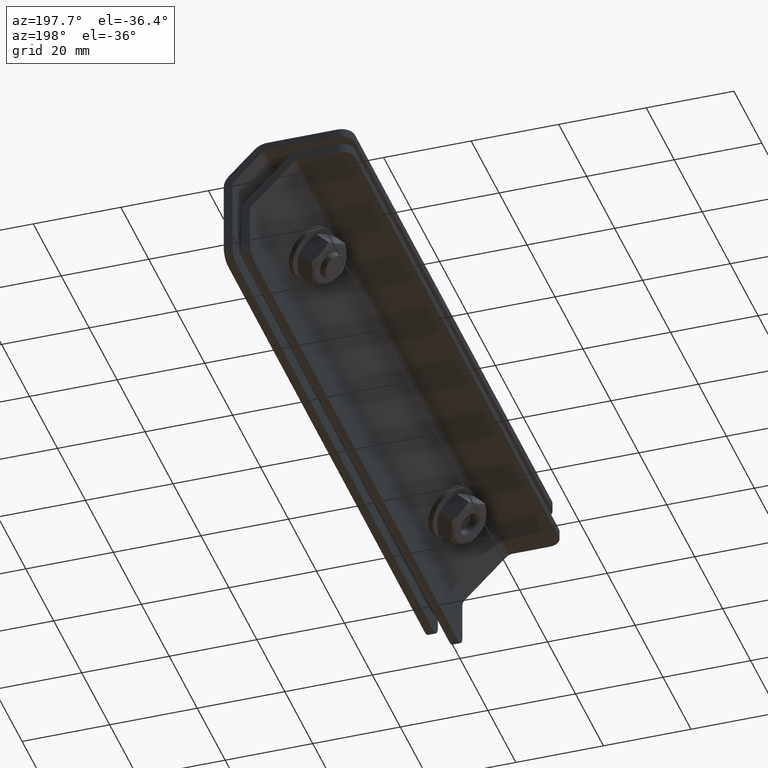
[diagram: clean part render]
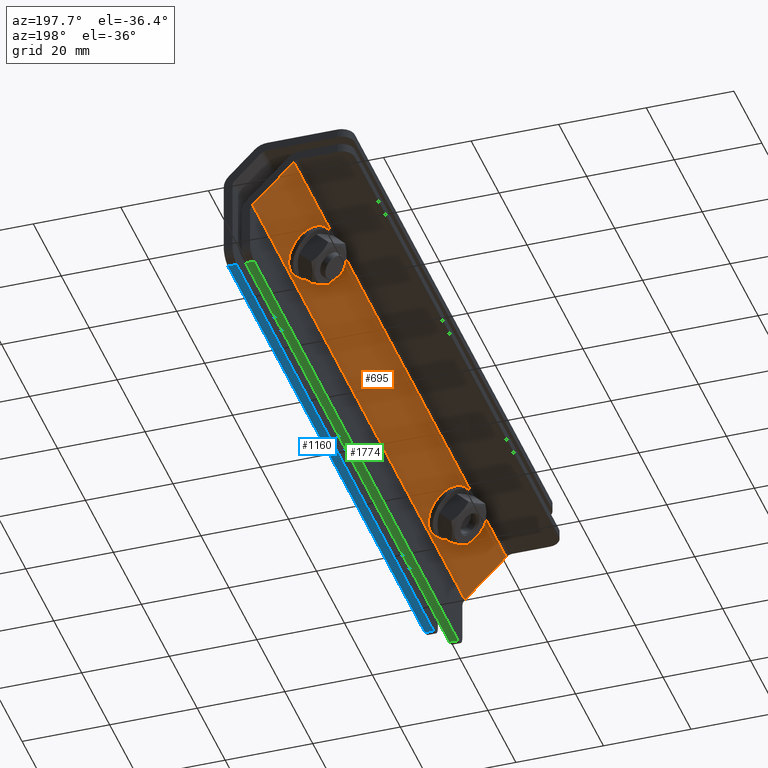
[diagram: same view with three faces highlighted in distinct colors, each labeled with its STEP entity id]
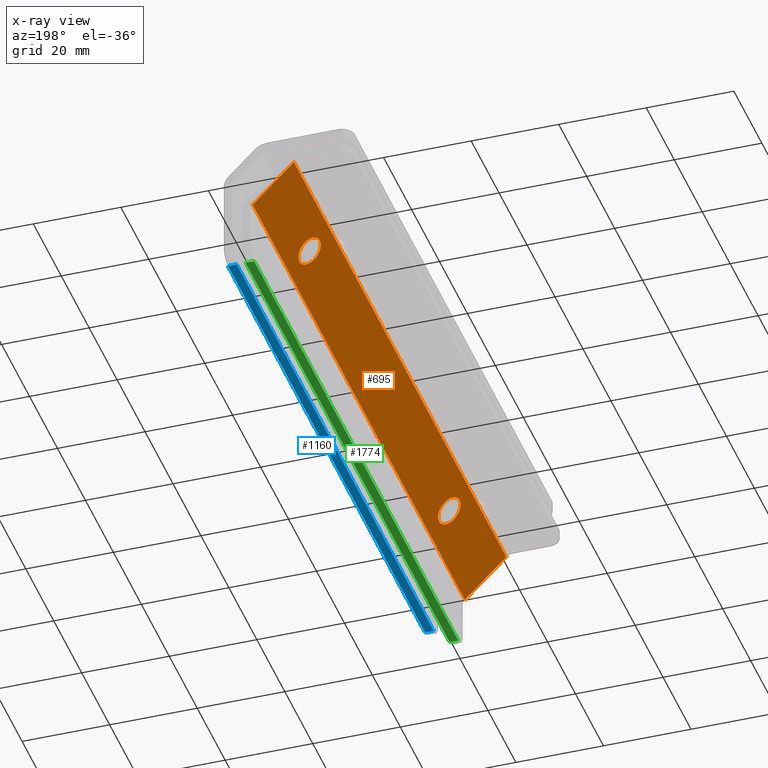
[diagram: x-ray of the same camera — body ghosted, the three highlighted faces saturated]
A machine part, auxiliary view with three faces highlighted in distinct colors.
The next image is the same camera in x-ray (body ghosted, the three faces saturated) — at least one of them is partly hidden behind the body in this view.
Their STEP definitions:

[orange] entity #695 — the highlighted planar face has unit normal (-0.7071, 0, -0.7071).
#126 = DIRECTION ( 'NONE',  ( 0.000000000000000000, 1.000000000000000000, 0.000000000000000000 ) ) ;
#134 = VERTEX_POINT ( 'NONE', #2503 ) ;
#138 = VERTEX_POINT ( 'NONE', #2856 ) ;
#234 = EDGE_LOOP ( 'NONE', ( #1713 ) ) ;
#305 = ORIENTED_EDGE ( 'NONE', *, *, #2053, .T. ) ;
#420 = DIRECTION ( 'NONE',  ( -0.7071067811865462405, 0.000000000000000000, 0.7071067811865489050 ) ) ;
#673 = ORIENTED_EDGE ( 'NONE', *, *, #4275, .T. ) ;
#695 = ADVANCED_FACE ( 'NONE', ( #2802, #1056, #2118 ), #718, .T. ) ;
#707 = DIRECTION ( 'NONE',  ( 0.7071067811865474617, 0.000000000000000000, -0.7071067811865474617 ) ) ;
#718 = PLANE ( 'NONE',  #916 ) ;
#722 = VECTOR ( 'NONE', #420, 1000.000000000000000 ) ;
#801 = CARTESIAN_POINT ( 'NONE',  ( 16.38288594945976229, -53.71243701921709146, 154.8632467631853160 ) ) ;
#863 = LINE ( 'NONE', #884, #3283 ) ;
#884 = CARTESIAN_POINT ( 'NONE',  ( 18.76694799281636250, 72.48756298078292559, 152.4791847198286803 ) ) ;
#916 = AXIS2_PLACEMENT_3D ( 'NONE', #4126, #2782, #2412 ) ;
#934 = CARTESIAN_POINT ( 'NONE',  ( 8.746132712645078300, 72.28756298078290854, 162.5000000000000000 ) ) ;
#1044 = VERTEX_POINT ( 'NONE', #4253 ) ;
#1056 = FACE_BOUND ( 'NONE', #234, .T. ) ;
#1060 = EDGE_CURVE ( 'NONE', #1044, #3790, #1467, .T. ) ;
#1064 = CARTESIAN_POINT ( 'NONE',  ( 8.746132712645078300, -79.71243701921707725, 162.5000000000000000 ) ) ;
#1068 = LINE ( 'NONE', #4101, #3599 ) ;
#1071 = DIRECTION ( 'NONE',  ( 0.7071067811865485719, 0.000000000000000000, -0.7071067811865463515 ) ) ;
#1412 = VECTOR ( 'NONE', #4167, 1000.000000000000000 ) ;
#1467 = LINE ( 'NONE', #934, #1412 ) ;
#1713 = ORIENTED_EDGE ( 'NONE', *, *, #2501, .T. ) ;
#1877 = AXIS2_PLACEMENT_3D ( 'NONE', #2070, #3476, #1071 ) ;
#1958 = VERTEX_POINT ( 'NONE', #2946 ) ;
#2053 = EDGE_CURVE ( 'NONE', #134, #1044, #1068, .T. ) ;
#2070 = CARTESIAN_POINT ( 'NONE',  ( 14.04943357154416539, 46.28756298078291564, 157.1966991411009076 ) ) ;
#2118 = FACE_BOUND ( 'NONE', #3023, .T. ) ;
#2130 = DIRECTION ( 'NONE',  ( 0.7071067811865487940, -0.000000000000000000, 0.7071067811865463515 ) ) ;
#2221 = VERTEX_POINT ( 'NONE', #801 ) ;
#2269 = ORIENTED_EDGE ( 'NONE', *, *, #2893, .T. ) ;
#2280 = DIRECTION ( 'NONE',  ( -0.000000000000000000, -1.000000000000000000, -0.000000000000000000 ) ) ;
#2412 = DIRECTION ( 'NONE',  ( -0.7071067811865462405, 0.000000000000000000, 0.7071067811865489050 ) ) ;
#2501 = EDGE_CURVE ( 'NONE', #2221, #2221, #2931, .T. ) ;
#2503 = CARTESIAN_POINT ( 'NONE',  ( 9.331919150271982488, -79.71243701921707725, 161.9142135623731065 ) ) ;
#2673 = ORIENTED_EDGE ( 'NONE', *, *, #1060, .T. ) ;
#2782 = DIRECTION ( 'NONE',  ( -0.7071067811865489050, 0.000000000000000000, -0.7071067811865462405 ) ) ;
#2788 = AXIS2_PLACEMENT_3D ( 'NONE', #3465, #2130, #707 ) ;
#2802 = FACE_OUTER_BOUND ( 'NONE', #3655, .T. ) ;
#2856 = CARTESIAN_POINT ( 'NONE',  ( 18.76694799281636250, -79.71243701921707725, 152.4791847198286803 ) ) ;
#2893 = EDGE_CURVE ( 'NONE', #3790, #138, #863, .T. ) ;
#2931 = CIRCLE ( 'NONE', #2788, 3.299999999999992273 ) ;
#2946 = CARTESIAN_POINT ( 'NONE',  ( 16.38288594945977295, 46.28756298078291564, 154.8632467631853160 ) ) ;
#3023 = EDGE_LOOP ( 'NONE', ( #4259 ) ) ;
#3248 = CARTESIAN_POINT ( 'NONE',  ( 18.76694799281636250, 72.28756298078290854, 152.4791847198286803 ) ) ;
#3283 = VECTOR ( 'NONE', #2280, 1000.000000000000000 ) ;
#3366 = LINE ( 'NONE', #1064, #722 ) ;
#3465 = CARTESIAN_POINT ( 'NONE',  ( 14.04943357154416006, -53.71243701921709146, 157.1966991411009076 ) ) ;
#3476 = DIRECTION ( 'NONE',  ( 0.7071067811865487940, -0.000000000000000000, 0.7071067811865463515 ) ) ;
#3599 = VECTOR ( 'NONE', #126, 1000.000000000000000 ) ;
#3655 = EDGE_LOOP ( 'NONE', ( #2673, #2269, #673, #305 ) ) ;
#3790 = VERTEX_POINT ( 'NONE', #3248 ) ;
#3855 = EDGE_CURVE ( 'NONE', #1958, #1958, #4325, .T. ) ;
#4101 = CARTESIAN_POINT ( 'NONE',  ( 9.331919150271982488, 72.48756298078292559, 161.9142135623731065 ) ) ;
#4126 = CARTESIAN_POINT ( 'NONE',  ( 8.746132712645078300, 72.48756298078292559, 162.5000000000000000 ) ) ;
#4167 = DIRECTION ( 'NONE',  ( 0.7071067811865462405, -0.000000000000000000, -0.7071067811865489050 ) ) ;
#4253 = CARTESIAN_POINT ( 'NONE',  ( 9.331919150271982488, 72.28756298078290854, 161.9142135623731065 ) ) ;
#4259 = ORIENTED_EDGE ( 'NONE', *, *, #3855, .T. ) ;
#4275 = EDGE_CURVE ( 'NONE', #138, #134, #3366, .T. ) ;
#4325 = CIRCLE ( 'NONE', #1877, 3.299999999999997602 ) ;

[blue] entity #1160 — the highlighted planar face has unit normal (-0, -0, -1).
#6 = EDGE_CURVE ( 'NONE', #3363, #1829, #3376, .T. ) ;
#184 = EDGE_CURVE ( 'NONE', #1981, #2444, #2921, .T. ) ;
#293 = DIRECTION ( 'NONE',  ( 1.000000000000000000, -1.962615573354721855E-16, -3.330669073875468832E-15 ) ) ;
#355 = VECTOR ( 'NONE', #1973, 1000.000000000000000 ) ;
#617 = FACE_OUTER_BOUND ( 'NONE', #2224, .T. ) ;
#703 = DIRECTION ( 'NONE',  ( 1.962615573354715199E-16, 1.000000000000000000, -1.962615573354722102E-16 ) ) ;
#1027 = CARTESIAN_POINT ( 'NONE',  ( 25.35273443044420816, -71.71243701921700620, 139.4999999999998295 ) ) ;
#1053 = VECTOR ( 'NONE', #2522, 1000.000000000000000 ) ;
#1112 = DIRECTION ( 'NONE',  ( 1.000000000000000000, -1.962615573354721855E-16, -3.330669073875468832E-15 ) ) ;
#1160 = ADVANCED_FACE ( 'NONE', ( #617 ), #1976, .T. ) ;
#1406 = LINE ( 'NONE', #2449, #2438 ) ;
#1434 = ORIENTED_EDGE ( 'NONE', *, *, #3051, .F. ) ;
#1497 = CARTESIAN_POINT ( 'NONE',  ( 25.35273443044423658, 69.28756298078297959, 139.4999999999998010 ) ) ;
#1772 = VECTOR ( 'NONE', #703, 1000.000000000000000 ) ;
#1812 = EDGE_CURVE ( 'NONE', #1829, #1981, #3528, .T. ) ;
#1829 = VERTEX_POINT ( 'NONE', #4202 ) ;
#1910 = AXIS2_PLACEMENT_3D ( 'NONE', #2351, #4313, #293 ) ;
#1973 = DIRECTION ( 'NONE',  ( -1.962615573354715199E-16, -1.000000000000000000, 1.962615573354722102E-16 ) ) ;
#1976 = PLANE ( 'NONE',  #1910 ) ;
#1981 = VERTEX_POINT ( 'NONE', #2719 ) ;
#2224 = EDGE_LOOP ( 'NONE', ( #2624, #3303, #4208, #1434 ) ) ;
#2351 = CARTESIAN_POINT ( 'NONE',  ( 25.35273443044420816, -74.91243701921700904, 139.4999999999998295 ) ) ;
#2438 = VECTOR ( 'NONE', #1112, 1000.000000000000000 ) ;
#2444 = VERTEX_POINT ( 'NONE', #1027 ) ;
#2449 = CARTESIAN_POINT ( 'NONE',  ( 25.35273443044420816, -71.71243701921700620, 139.4999999999998295 ) ) ;
#2522 = DIRECTION ( 'NONE',  ( 1.000000000000000000, -1.962615573354721855E-16, -3.330669073875468832E-15 ) ) ;
#2624 = ORIENTED_EDGE ( 'NONE', *, *, #6, .T. ) ;
#2656 = CARTESIAN_POINT ( 'NONE',  ( 25.35273443044420816, -74.91243701921700904, 139.4999999999998295 ) ) ;
#2719 = CARTESIAN_POINT ( 'NONE',  ( 25.35273443044423658, 69.28756298078299380, 139.4999999999998010 ) ) ;
#2921 = LINE ( 'NONE', #2656, #355 ) ;
#3040 = CARTESIAN_POINT ( 'NONE',  ( 23.35273443044420816, -71.71243701921700620, 139.4999999999998295 ) ) ;
#3051 = EDGE_CURVE ( 'NONE', #3363, #2444, #1406, .T. ) ;
#3303 = ORIENTED_EDGE ( 'NONE', *, *, #1812, .T. ) ;
#3363 = VERTEX_POINT ( 'NONE', #3040 ) ;
#3376 = LINE ( 'NONE', #3792, #1772 ) ;
#3528 = LINE ( 'NONE', #1497, #1053 ) ;
#3792 = CARTESIAN_POINT ( 'NONE',  ( 23.35273443044420816, -74.91243701921700904, 139.4999999999998295 ) ) ;
#4202 = CARTESIAN_POINT ( 'NONE',  ( 23.35273443044423658, 69.28756298078299380, 139.4999999999998010 ) ) ;
#4208 = ORIENTED_EDGE ( 'NONE', *, *, #184, .T. ) ;
#4313 = DIRECTION ( 'NONE',  ( -3.330669073875468832E-15, -1.962615573354715446E-16, -1.000000000000000000 ) ) ;

[green] entity #1774 — the highlighted planar face has unit normal (0, 0, -1).
#3 = CARTESIAN_POINT ( 'NONE',  ( 21.35273443044327024, -76.71243701921709146, 139.5000000000000000 ) ) ;
#115 = ORIENTED_EDGE ( 'NONE', *, *, #1907, .T. ) ;
#252 = CARTESIAN_POINT ( 'NONE',  ( 19.35273443044326669, 69.28756298078290854, 139.5000000000000000 ) ) ;
#255 = ORIENTED_EDGE ( 'NONE', *, *, #2187, .F. ) ;
#344 = VERTEX_POINT ( 'NONE', #3730 ) ;
#676 = VERTEX_POINT ( 'NONE', #3 ) ;
#698 = CARTESIAN_POINT ( 'NONE',  ( 21.35273443044327024, 69.28756298078290854, 139.5000000000000000 ) ) ;
#780 = VECTOR ( 'NONE', #1327, 1000.000000000000000 ) ;
#784 = DIRECTION ( 'NONE',  ( -0.000000000000000000, -1.000000000000000000, 0.000000000000000000 ) ) ;
#837 = FACE_OUTER_BOUND ( 'NONE', #2357, .T. ) ;
#906 = PLANE ( 'NONE',  #1120 ) ;
#927 = DIRECTION ( 'NONE',  ( -1.000000000000000000, 0.000000000000000000, -0.000000000000000000 ) ) ;
#1074 = DIRECTION ( 'NONE',  ( 1.000000000000000000, 0.000000000000000000, 0.000000000000000000 ) ) ;
#1111 = CARTESIAN_POINT ( 'NONE',  ( 19.35273443044326669, 72.48756298078292559, 139.5000000000000000 ) ) ;
#1120 = AXIS2_PLACEMENT_3D ( 'NONE', #1567, #2937, #927 ) ;
#1327 = DIRECTION ( 'NONE',  ( -0.000000000000000000, -1.000000000000000000, -0.000000000000000000 ) ) ;
#1345 = LINE ( 'NONE', #2689, #2650 ) ;
#1554 = VECTOR ( 'NONE', #1074, 1000.000000000000000 ) ;
#1567 = CARTESIAN_POINT ( 'NONE',  ( 19.35273443044326669, 72.48756298078292559, 139.5000000000000000 ) ) ;
#1581 = VERTEX_POINT ( 'NONE', #698 ) ;
#1636 = LINE ( 'NONE', #2345, #780 ) ;
#1729 = EDGE_CURVE ( 'NONE', #344, #676, #3832, .T. ) ;
#1774 = ADVANCED_FACE ( 'NONE', ( #837 ), #906, .T. ) ;
#1907 = EDGE_CURVE ( 'NONE', #1581, #676, #1636, .T. ) ;
#2187 = EDGE_CURVE ( 'NONE', #3628, #344, #4122, .T. ) ;
#2306 = EDGE_CURVE ( 'NONE', #3628, #1581, #1345, .T. ) ;
#2345 = CARTESIAN_POINT ( 'NONE',  ( 21.35273443044327024, 72.48756298078292559, 139.5000000000000000 ) ) ;
#2357 = EDGE_LOOP ( 'NONE', ( #115, #4076, #255, #3234 ) ) ;
#2650 = VECTOR ( 'NONE', #3364, 1000.000000000000000 ) ;
#2689 = CARTESIAN_POINT ( 'NONE',  ( 19.35273443044326669, 69.28756298078290854, 139.5000000000000000 ) ) ;
#2857 = VECTOR ( 'NONE', #784, 1000.000000000000000 ) ;
#2937 = DIRECTION ( 'NONE',  ( 0.000000000000000000, 0.000000000000000000, -1.000000000000000000 ) ) ;
#3234 = ORIENTED_EDGE ( 'NONE', *, *, #2306, .T. ) ;
#3364 = DIRECTION ( 'NONE',  ( 1.000000000000000000, -0.000000000000000000, 0.000000000000000000 ) ) ;
#3628 = VERTEX_POINT ( 'NONE', #252 ) ;
#3730 = CARTESIAN_POINT ( 'NONE',  ( 19.35273443044326669, -76.71243701921709146, 139.5000000000000000 ) ) ;
#3832 = LINE ( 'NONE', #4084, #1554 ) ;
#4076 = ORIENTED_EDGE ( 'NONE', *, *, #1729, .F. ) ;
#4084 = CARTESIAN_POINT ( 'NONE',  ( 17.35273443044326669, -76.71243701921709146, 139.5000000000000000 ) ) ;
#4122 = LINE ( 'NONE', #1111, #2857 ) ;